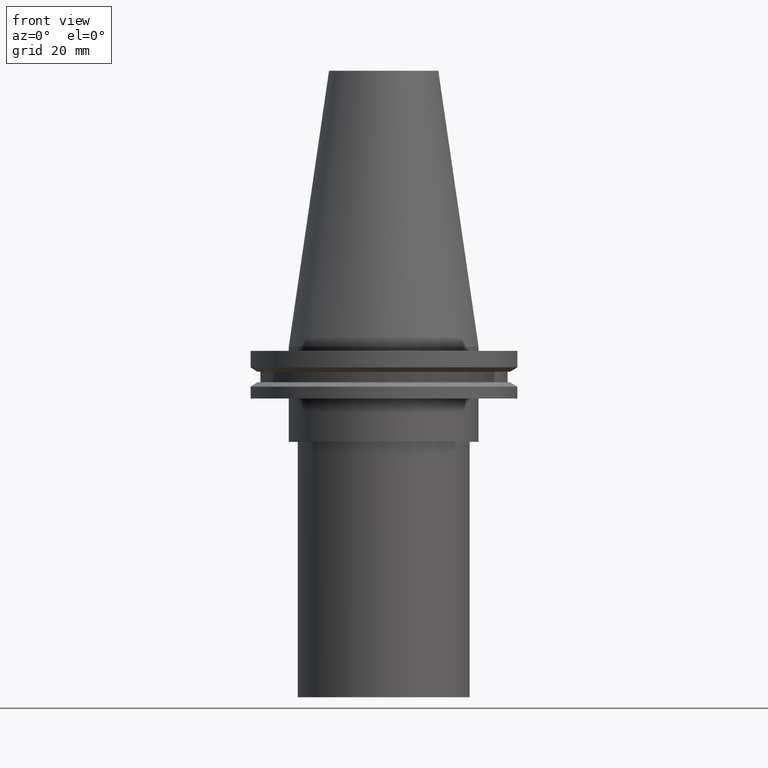
[diagram: clean part render]
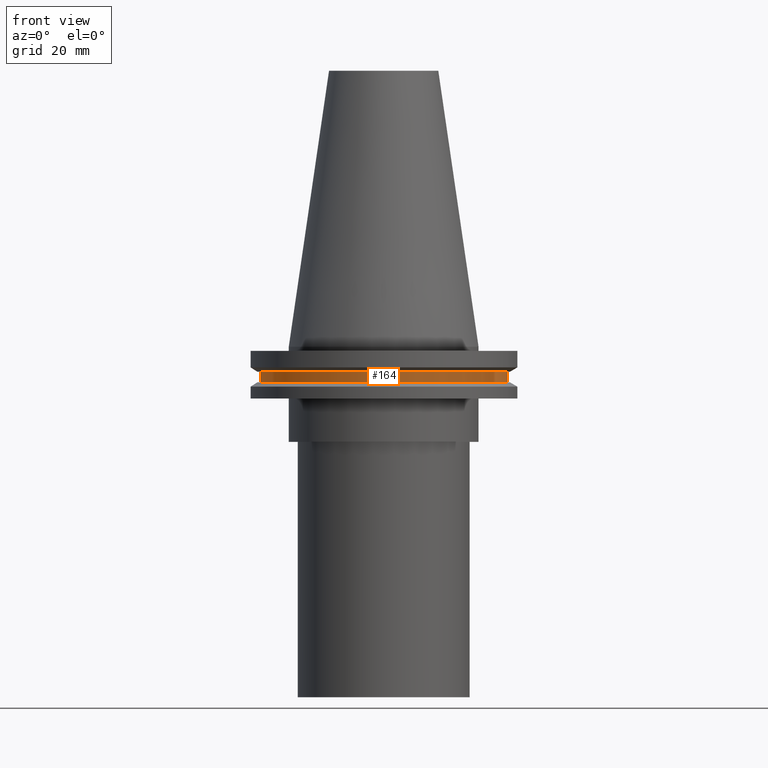
[diagram: same view with one face highlighted and labeled with its STEP entity id]
A machine part, front view. The second image highlights one B-rep face of the part: STEP entity #164.
In plain terms, the highlighted cylindrical surface (bore or boss wall) has radius 45.645 mm, axis along (-0, -0, 1).
Its self-contained STEP definition (entity closure, byte-faithful):
#21 = DIRECTION ( 'NONE',  ( -0.000000000000000000, -0.000000000000000000, 1.000000000000000000 ) ) ;
#43 = FACE_OUTER_BOUND ( 'NONE', #334, .T. ) ;
#85 = CARTESIAN_POINT ( 'NONE',  ( 0.000000000000000000, 0.000000000000000000, -13.05499999999999794 ) ) ;
#99 = VERTEX_POINT ( 'NONE', #340 ) ;
#109 = DIRECTION ( 'NONE',  ( -0.000000000000000000, -0.000000000000000000, 1.000000000000000000 ) ) ;
#114 = FACE_OUTER_BOUND ( 'NONE', #162, .T. ) ;
#132 = CIRCLE ( 'NONE', #367, 45.64500000000000313 ) ;
#161 = CARTESIAN_POINT ( 'NONE',  ( 45.64500000000000313, 0.000000000000000000, -9.204999999999991189 ) ) ;
#162 = EDGE_LOOP ( 'NONE', ( #298 ) ) ;
#164 = ADVANCED_FACE ( 'NONE', ( #114, #43 ), #203, .T. ) ;
#173 = CARTESIAN_POINT ( 'NONE',  ( 0.000000000000000000, 0.000000000000000000, 101.5999999999999943 ) ) ;
#178 = EDGE_CURVE ( 'NONE', #313, #313, #353, .T. ) ;
#182 = DIRECTION ( 'NONE',  ( 1.000000000000000000, 0.000000000000000000, 0.000000000000000000 ) ) ;
#186 = ORIENTED_EDGE ( 'NONE', *, *, #256, .T. ) ;
#203 = CYLINDRICAL_SURFACE ( 'NONE', #343, 45.64500000000000313 ) ;
#208 = CARTESIAN_POINT ( 'NONE',  ( 0.000000000000000000, 0.000000000000000000, -9.204999999999991189 ) ) ;
#230 = DIRECTION ( 'NONE',  ( 1.000000000000000000, 0.000000000000000000, 0.000000000000000000 ) ) ;
#244 = AXIS2_PLACEMENT_3D ( 'NONE', #208, #109, #182 ) ;
#256 = EDGE_CURVE ( 'NONE', #99, #99, #132, .T. ) ;
#296 = DIRECTION ( 'NONE',  ( -0.000000000000000000, -0.000000000000000000, 1.000000000000000000 ) ) ;
#298 = ORIENTED_EDGE ( 'NONE', *, *, #178, .F. ) ;
#313 = VERTEX_POINT ( 'NONE', #161 ) ;
#330 = DIRECTION ( 'NONE',  ( 1.000000000000000000, 0.000000000000000000, 0.000000000000000000 ) ) ;
#334 = EDGE_LOOP ( 'NONE', ( #186 ) ) ;
#340 = CARTESIAN_POINT ( 'NONE',  ( 45.64500000000000313, 0.000000000000000000, -13.05499999999999794 ) ) ;
#343 = AXIS2_PLACEMENT_3D ( 'NONE', #173, #21, #330 ) ;
#353 = CIRCLE ( 'NONE', #244, 45.64500000000000313 ) ;
#367 = AXIS2_PLACEMENT_3D ( 'NONE', #85, #296, #230 ) ;